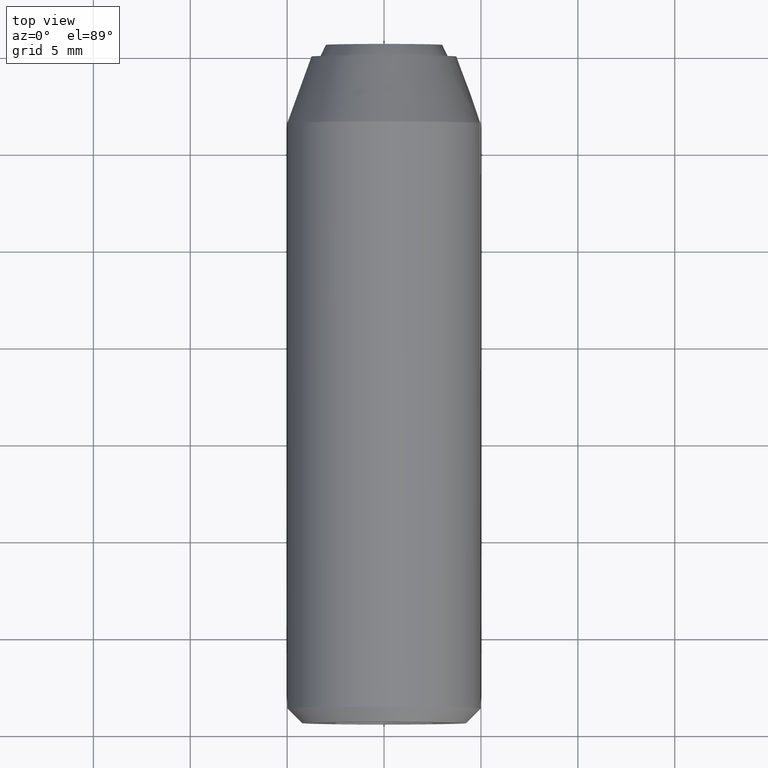
[diagram: clean part render]
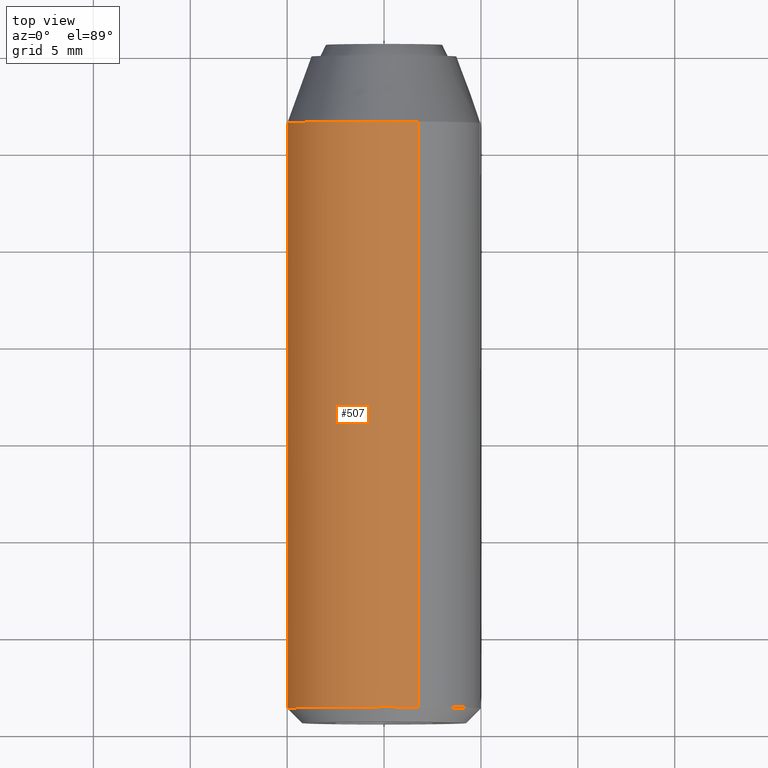
[diagram: same view with one face highlighted and labeled with its STEP entity id]
A machine part, top view. The second image highlights one B-rep face of the part: STEP entity #507.
In plain terms, the highlighted face is a freeform B-spline surface patch.
Its self-contained STEP definition (entity closure, byte-faithful):
#304=CARTESIAN_POINT('',(-4.984586668667435,-33.649999999995508,0.392295478673589));
#305=VERTEX_POINT('',#304);
#311=CARTESIAN_POINT('',(-4.990673992107780,-33.649999999999999,0.305242697699694));
#312=VERTEX_POINT('',#311);
#313=CARTESIAN_POINT('',(-4.984586668667435,-33.649999999995515,0.392295478673589));
#314=CARTESIAN_POINT('',(-4.988010179438556,-33.649999999999999,0.348795649849651));
#315=CARTESIAN_POINT('',(-4.990673992107780,-33.649999999999991,0.305242697699694));
#323=(BOUNDED_CURVE()B_SPLINE_CURVE(2,(#313,#314,#315),.UNSPECIFIED.,.F.,.U.)B_SPLINE_CURVE_WITH_KNOTS((3,3),(0.736331300630428,0.739332962240210),.UNSPECIFIED.)CURVE()GEOMETRIC_REPRESENTATION_ITEM()RATIONAL_B_SPLINE_CURVE((0.969723356166933,0.972855475561009,0.976072041669434))REPRESENTATION_ITEM(''));
#324=EDGE_CURVE('',#305,#312,#323,.T.);
#362=CARTESIAN_POINT('',(1.758086609779861,-33.649999999999991,4.680719119163272));
#363=VERTEX_POINT('',#362);
#379=CARTESIAN_POINT('',(0.0,-33.649999999999999,4.999999999999999));
#380=VERTEX_POINT('',#379);
#381=CARTESIAN_POINT('',(1.758086609779862,-33.649999999999991,4.680719119163272));
#382=CARTESIAN_POINT('',(0.908035130520365,-33.650000000000006,4.999999999999999));
#383=CARTESIAN_POINT('',(0.0,-33.649999999999999,4.999999999999999));
#391=(BOUNDED_CURVE()B_SPLINE_CURVE(2,(#381,#382,#383),.UNSPECIFIED.,.F.,.U.)B_SPLINE_CURVE_WITH_KNOTS((3,3),(0.440284280980439,0.500000000000000),.UNSPECIFIED.)CURVE()GEOMETRIC_REPRESENTATION_ITEM()RATIONAL_B_SPLINE_CURVE((0.893499689349541,0.930038683370405,1.0))REPRESENTATION_ITEM(''));
#392=EDGE_CURVE('',#363,#380,#391,.T.);
#394=CARTESIAN_POINT('',(0.0,-33.649999999999999,4.999999999999999));
#395=CARTESIAN_POINT('',(-4.621952458227778,-33.649999999999999,5.0));
#396=CARTESIAN_POINT('',(-4.984586668667435,-33.649999999995508,0.392295478673589));
#404=(BOUNDED_CURVE()B_SPLINE_CURVE(2,(#394,#395,#396),.UNSPECIFIED.,.F.,.U.)B_SPLINE_CURVE_WITH_KNOTS((3,3),(0.500000000000000,0.736331300630428),.UNSPECIFIED.)CURVE()GEOMETRIC_REPRESENTATION_ITEM()RATIONAL_B_SPLINE_CURVE((1.0,0.723120658607937,0.969723356166934))REPRESENTATION_ITEM(''));
#405=EDGE_CURVE('',#380,#305,#404,.T.);
#442=CARTESIAN_POINT('',(1.758089871957861,-2.678955674999998,4.680717893883286));
#443=CARTESIAN_POINT('',(1.054947258577041,-2.678955674999998,4.944820096825753));
#444=CARTESIAN_POINT('',(0.305242697674285,-2.678955674999998,4.990673992109333));
#445=CARTESIAN_POINT('',(-4.685431294435048,-2.678955674999999,5.295916689783618));
#446=CARTESIAN_POINT('',(-4.990673992109334,-2.678955674999998,0.305242697674284));
#447=CARTESIAN_POINT('',(1.758089871957861,-34.424276108124999,4.680717893883286));
#448=CARTESIAN_POINT('',(1.054947258577041,-34.424276108124999,4.944820096825753));
#449=CARTESIAN_POINT('',(0.305242697674285,-34.424276108124999,4.990673992109333));
#450=CARTESIAN_POINT('',(-4.685431294435048,-34.424276108124999,5.295916689783618));
#451=CARTESIAN_POINT('',(-4.990673992109334,-34.424276108124999,0.305242697674284));
#459=(BOUNDED_SURFACE()B_SPLINE_SURFACE(2,1,((#442,#447),(#443,#448),(#444,#449),(#445,#450),(#446,#451)),.UNSPECIFIED.,.F.,.F.,.U.)B_SPLINE_SURFACE_WITH_KNOTS((3,2,3),(2,2),(0.0,1.656854249492380,9.941125496954278),(0.0,31.745320433125009),.UNSPECIFIED.)GEOMETRIC_REPRESENTATION_ITEM()RATIONAL_B_SPLINE_SURFACE(((0.906274169979695,0.906274169979695),(0.941421356237309,0.941421356237309),(1.0,1.0),(0.707106781186548,0.707106781186548),(1.0,1.0)))REPRESENTATION_ITEM('')SURFACE());
#460=CARTESIAN_POINT('',(1.758085411978979,-3.434346999999992,4.680719569058159));
#461=VERTEX_POINT('',#460);
#462=CARTESIAN_POINT('',(0.0,-3.434347000000000,4.999999999999999));
#463=VERTEX_POINT('',#462);
#464=CARTESIAN_POINT('',(1.758085411978979,-3.434346999999991,4.680719569058159));
#465=CARTESIAN_POINT('',(0.908034469668268,-3.434346999999999,4.999999999999999));
#466=CARTESIAN_POINT('',(0.0,-3.434347000000000,4.999999999999999));
#474=(BOUNDED_CURVE()B_SPLINE_CURVE(2,(#464,#465,#466),.UNSPECIFIED.,.F.,.U.)B_SPLINE_CURVE_WITH_KNOTS((3,3),(0.440284321399975,0.500000000000000),.UNSPECIFIED.)CURVE()GEOMETRIC_REPRESENTATION_ITEM()RATIONAL_B_SPLINE_CURVE((0.893499738813557,0.930038730724837,1.0))REPRESENTATION_ITEM(''));
#475=EDGE_CURVE('',#461,#463,#474,.T.);
#476=ORIENTED_EDGE('',*,*,#475,.T.);
#477=CARTESIAN_POINT('',(-4.990673992109441,-3.434347000007194,0.305242697693963));
#478=VERTEX_POINT('',#477);
#479=CARTESIAN_POINT('',(0.0,-3.434347000000000,4.999999999999999));
#480=CARTESIAN_POINT('',(-4.703530334454459,-3.434346999999999,4.999999999999998));
#481=CARTESIAN_POINT('',(-4.990673992109441,-3.434347000007195,0.305242697693963));
#489=(BOUNDED_CURVE()B_SPLINE_CURVE(2,(#479,#480,#481),.UNSPECIFIED.,.F.,.U.)B_SPLINE_CURVE_WITH_KNOTS((3,3),(0.500000000000000,0.739332962239258),.UNSPECIFIED.)CURVE()GEOMETRIC_REPRESENTATION_ITEM()RATIONAL_B_SPLINE_CURVE((1.0,0.719603993286341,0.976072041667393))REPRESENTATION_ITEM(''));
#490=EDGE_CURVE('',#463,#478,#489,.T.);
#491=ORIENTED_EDGE('',*,*,#490,.T.);
#492=CARTESIAN_POINT('',(-4.990673992109441,-3.434347000007194,0.305242697693963));
#493=CARTESIAN_POINT('',(-4.990673992107780,-33.649999999999999,0.305242697699694));
#494=QUASI_UNIFORM_CURVE('',1,(#492,#493),.UNSPECIFIED.,.F.,.U.);
#495=EDGE_CURVE('',#478,#312,#494,.T.);
#496=ORIENTED_EDGE('',*,*,#495,.T.);
#497=ORIENTED_EDGE('',*,*,#324,.F.);
#498=ORIENTED_EDGE('',*,*,#405,.F.);
#499=ORIENTED_EDGE('',*,*,#392,.F.);
#500=CARTESIAN_POINT('',(1.758085411978979,-3.434346999999992,4.680719569058159));
#501=CARTESIAN_POINT('',(1.758086609779861,-33.649999999999991,4.680719119163272));
#502=QUASI_UNIFORM_CURVE('',1,(#500,#501),.UNSPECIFIED.,.F.,.U.);
#503=EDGE_CURVE('',#461,#363,#502,.T.);
#504=ORIENTED_EDGE('',*,*,#503,.F.);
#505=EDGE_LOOP('',(#476,#491,#496,#497,#498,#499,#504));
#506=FACE_OUTER_BOUND('',#505,.T.);
#507=ADVANCED_FACE('',(#506),#459,.T.);